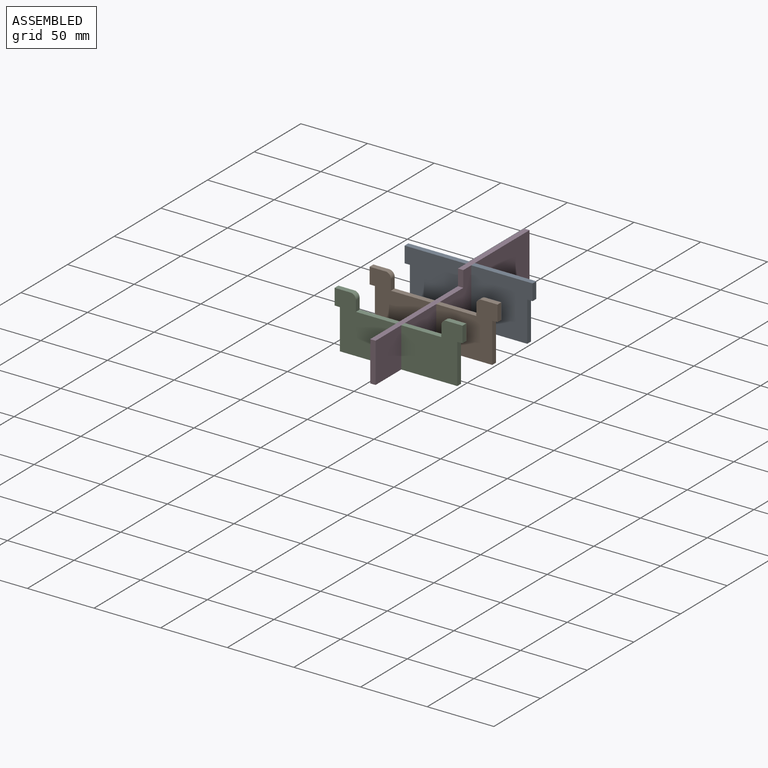
[diagram: assembled view]
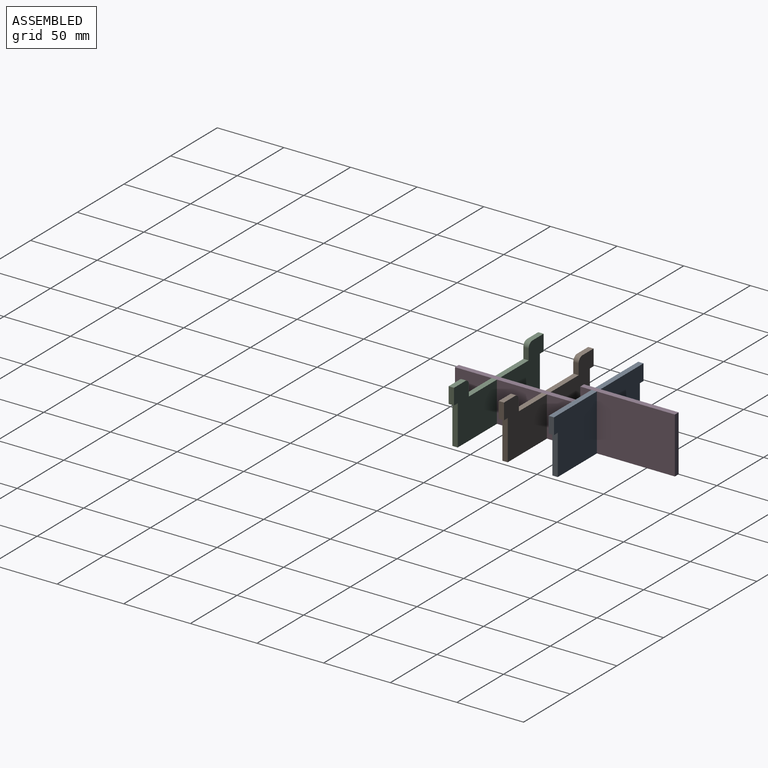
[diagram: assembled view, second angle]
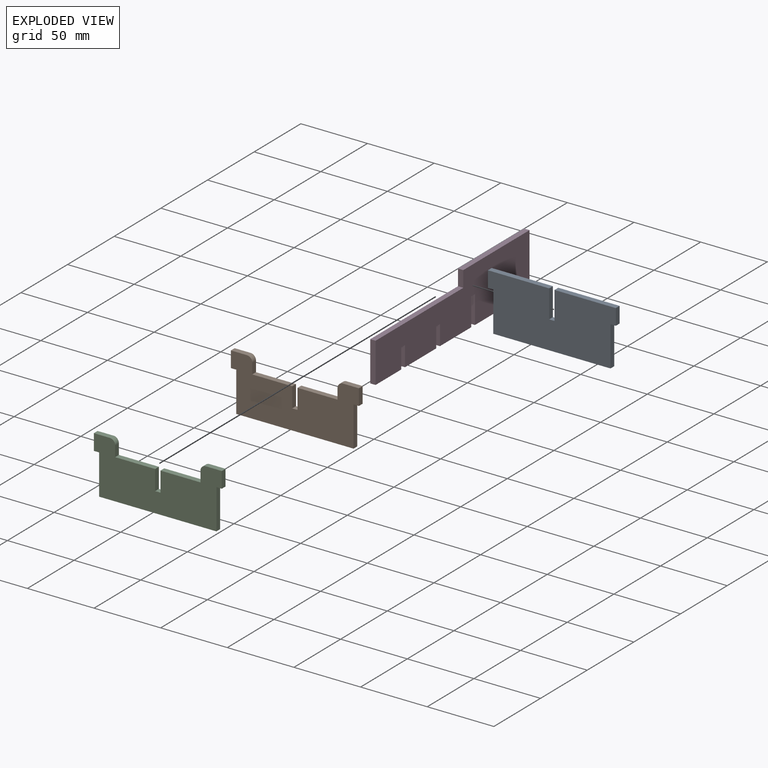
[diagram: exploded view]
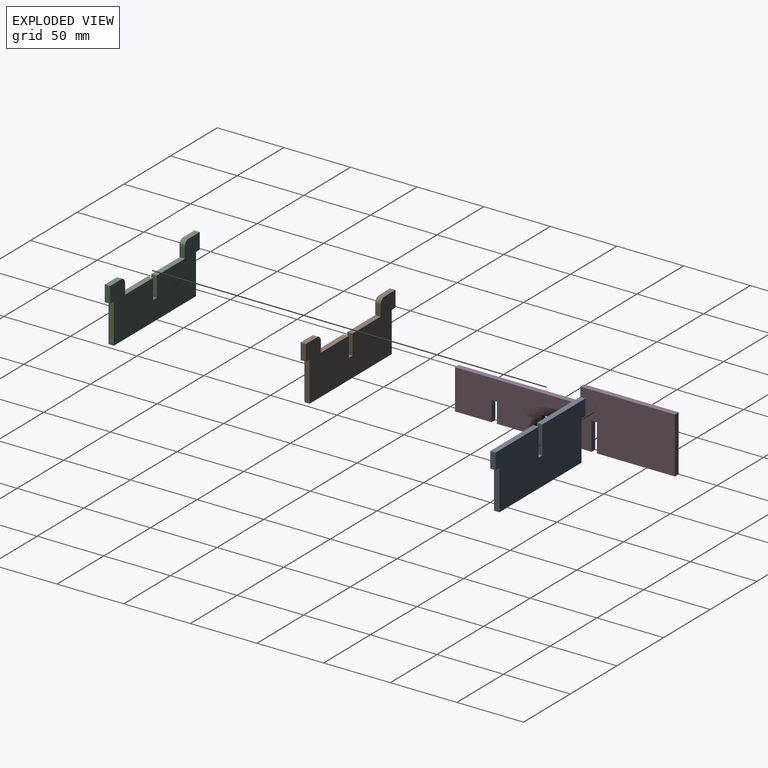
[diagram: exploded view, second angle]
ASSEMBLY  parts=4 mates=9
PART A: 14 faces, bbox 96x4x42 mm
  f0: plane 21x4mm, normal (1,0,0), area 84mm2, adj f1,f11,f12,f13
  f1: plane 46x4mm, normal (0,0,1), area 184mm2, adj f0,f2,f12,f13
  f2: plane 12x4mm, normal (-1,0,0), area 48mm2, adj f1,f3,f12,f13
  f3: plane 4x4mm, normal (0,0,-1), area 16mm2, adj f2,f4,f12,f13
  f4: plane 30x4mm, normal (-1,0,0), area 120mm2, adj f3,f5,f12,f13
  f5: plane 88x4mm, normal (0,0,-1), area 352mm2, adj f4,f6,f12,f13
  f6: plane 30x4mm, normal (1,0,0), area 120mm2, adj f5,f7,f12,f13
  f7: plane 4x4mm, normal (0,0,-1), area 16mm2, adj f6,f8,f12,f13
  f8: plane 12x4mm, normal (1,0,0), area 48mm2, adj f7,f9,f12,f13
  f9: plane 46x4mm, normal (0,0,1), area 184mm2, adj f8,f10,f12,f13
  f10: plane 21x4mm, normal (-1,0,0), area 84mm2, adj f9,f11,f12,f13
  f11: plane 4x4mm, normal (0,0,1), area 16mm2, adj f0,f10,f12,f13
  f12: plane 96x42mm, normal (0,1,0), area 3708mm2, adj f0,f1,f2,f3,f4,f5,f6,f7
  f13: plane 96x42mm, normal (0,-1,0), area 3708mm2, adj f0,f1,f2,f3,f4,f5,f6,f7
PART B: 20 faces, bbox 96x4x42 mm
  f0: plane 4x4mm, normal (0,0,-1), area 16mm2, adj f1,f17,f18,f19
  f1: plane 12x4mm, normal (1,0,0), area 48mm2, adj f0,f2,f18,f19
  f2: plane 12x4mm, normal (0,0,1), area 48mm2, adj f1,f3,f18,f19
  f3: cylinder r=4mm len=4mm, axis (0,1,0), area 25.1mm2, adj f2,f4,f18,f19
  f4: plane 8x4mm, normal (-1,0,0), area 32mm2, adj f3,f5,f18,f19
  f5: plane 30x4mm, normal (0,0,1), area 120mm2, adj f4,f6,f18,f19
  f6: plane 15x4mm, normal (-1,0,0), area 60mm2, adj f5,f7,f18,f19
  f7: plane 4x4mm, normal (0,0,1), area 16mm2, adj f6,f8,f18,f19
  f8: plane 15x4mm, normal (1,0,0), area 60mm2, adj f7,f9,f18,f19
  f9: plane 30x4mm, normal (0,0,1), area 120mm2, adj f8,f10,f18,f19
  f10: plane 8x4mm, normal (1,0,0), area 32mm2, adj f9,f11,f18,f19
  f11: cylinder r=4mm len=4mm, axis (0,1,0), area 25.1mm2, adj f10,f12,f18,f19
  f12: plane 12x4mm, normal (0,0,1), area 48mm2, adj f11,f13,f18,f19
  f13: plane 12x4mm, normal (-1,0,0), area 48mm2, adj f12,f14,f18,f19
  f14: plane 4x4mm, normal (0,0,-1), area 16mm2, adj f13,f15,f18,f19
  f15: plane 30x4mm, normal (-1,0,0), area 120mm2, adj f14,f16,f18,f19
  f16: plane 88x4mm, normal (0,0,-1), area 352mm2, adj f15,f17,f18,f19
  f17: plane 30x4mm, normal (1,0,0), area 120mm2, adj f0,f16,f18,f19
  f18: plane 96x42mm, normal (0,-1,0), area 2957.1mm2, adj f0,f1,f2,f3,f4,f5,f6,f7
  f19: plane 96x42mm, normal (0,1,0), area 2957.1mm2, adj f0,f1,f2,f3,f4,f5,f6,f7
PART C: same geometry as B
PART D: 20 faces, bbox 4x165x42 mm
  f0: plane 4x4mm, normal (0,0,-1), area 16mm2, adj f1,f17,f18,f19
  f1: plane 15x4mm, normal (0,-1,0), area 60mm2, adj f0,f2,f18,f19
  f2: plane 33.5x4mm, normal (0,0,-1), area 134mm2, adj f1,f3,f18,f19
  f3: plane 21x4mm, normal (0,1,0), area 84mm2, adj f2,f4,f18,f19
  f4: plane 4x4mm, normal (0,0,-1), area 16mm2, adj f3,f5,f18,f19
  f5: plane 21x4mm, normal (0,-1,0), area 84mm2, adj f4,f6,f18,f19
  f6: plane 58.5x4mm, normal (0,0,-1), area 234mm2, adj f5,f7,f18,f19
  f7: plane 42x4mm, normal (0,1,0), area 168mm2, adj f6,f8,f18,f19
  f8: plane 71x4mm, normal (0,0,1), area 284mm2, adj f7,f9,f18,f19
  f9: plane 12x4mm, normal (0,-1,0), area 48mm2, adj f8,f10,f18,f19
  f10: plane 94x4mm, normal (0,0,1), area 376mm2, adj f9,f11,f18,f19
  f11: plane 30x4mm, normal (0,-1,0), area 120mm2, adj f10,f12,f18,f19
  f12: plane 27.5x4mm, normal (0,0,-1), area 110mm2, adj f11,f13,f18,f19
  f13: plane 15x4mm, normal (0,1,0), area 60mm2, adj f12,f14,f18,f19
  f14: plane 4x4mm, normal (0,0,-1), area 16mm2, adj f13,f15,f18,f19
  f15: plane 15x4mm, normal (0,-1,0), area 60mm2, adj f14,f16,f18,f19
  f16: plane 33.5x4mm, normal (0,0,-1), area 134mm2, adj f15,f17,f18,f19
  f17: plane 15x4mm, normal (0,1,0), area 60mm2, adj f0,f16,f18,f19
  f18: plane 165x42mm, normal (-1,0,0), area 5598mm2, adj f0,f1,f2,f3,f4,f5,f6,f7
  f19: plane 165x42mm, normal (1,0,0), area 5598mm2, adj f0,f1,f2,f3,f4,f5,f6,f7
PLACE A t=(-223.77,162.43,86.81)mm
PLACE B t=(-223.77,128.93,86.81)mm
PLACE C t=(-223.77,91.43,86.81)mm
PLACE D t=(-240.77,210.93,86.81)mm fixed
MATE planar C.f19 <-> D.f15  axis (0,1,0) through (-274.77,91.43,120.81)mm
MATE planar D.f1 <-> B.f19  axis (0,-1,0) through (-242.77,128.93,98.31)mm
MATE planar A.f0 <-> D.f18  axis (1,0,0) through (-244.77,164.43,122.31)mm
MATE planar C.f6 <-> D.f19  axis (-1,0,0) through (-240.77,89.43,113.31)mm
MATE planar B.f6 <-> D.f19  axis (-1,0,0) through (-240.77,126.93,113.31)mm
MATE planar D.f0 <-> B.f7  axis (0,0,-1) through (-242.77,126.93,105.81)mm
MATE planar D.f5 <-> A.f12  axis (0,-1,0) through (-242.77,166.43,101.31)mm
MATE planar A.f11 <-> D.f4  axis (0,0,1) through (-242.77,164.43,111.81)mm
MATE planar C.f7 <-> D.f14  axis (0,0,1) through (-242.77,89.43,105.81)mm
